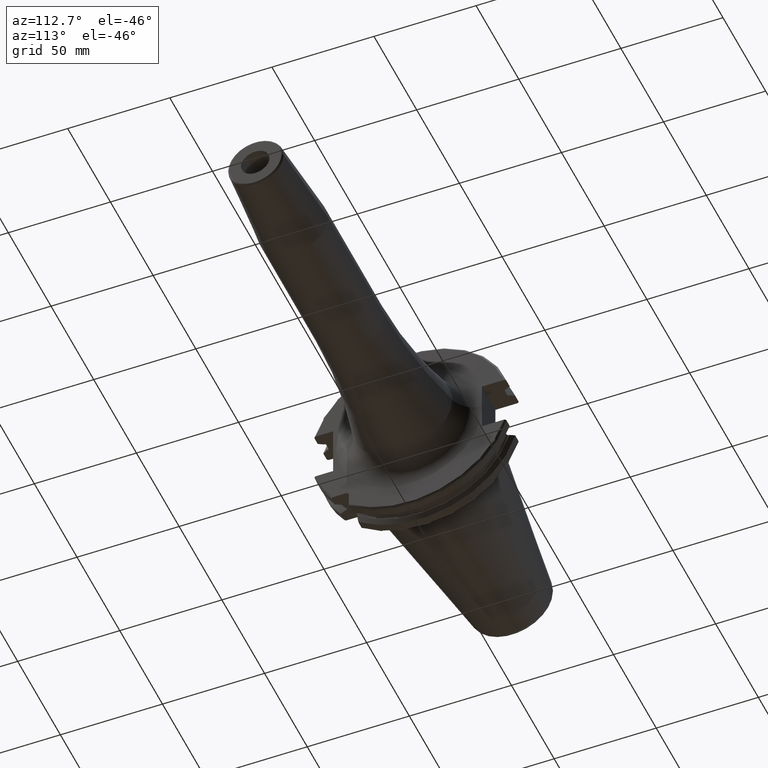
[diagram: clean part render]
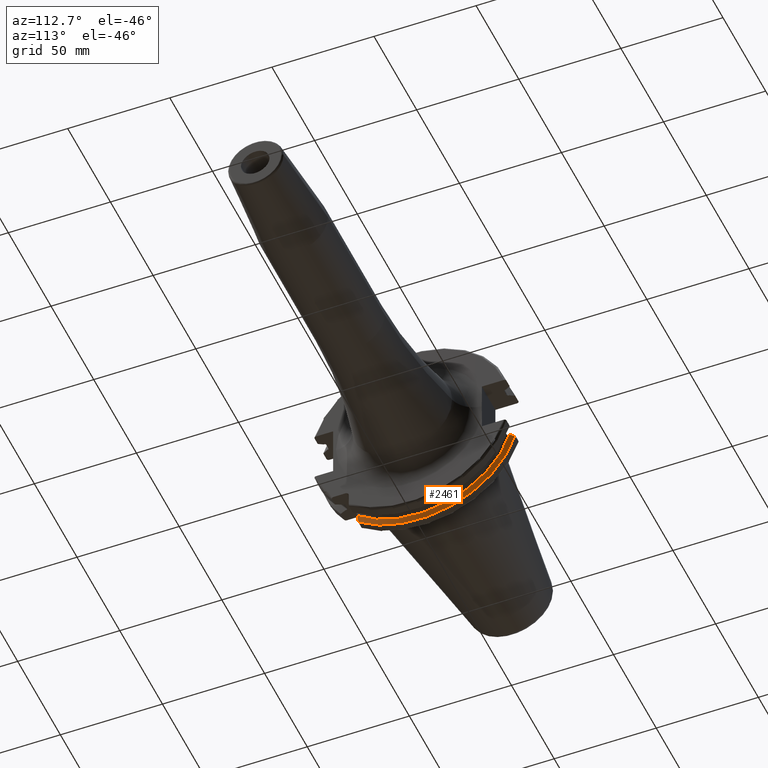
[diagram: same view with one face highlighted and labeled with its STEP entity id]
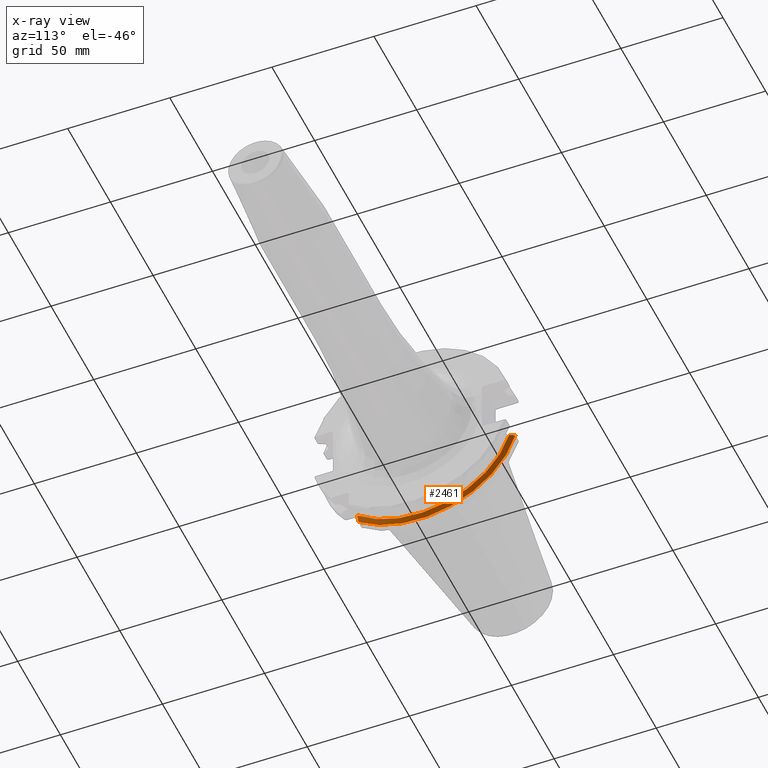
[diagram: x-ray of the same camera — body ghosted, the highlighted face saturated]
A machine part, auxiliary view. The second image highlights one B-rep face of the part: STEP entity #2461.
The next image is the same camera in x-ray: the body ghosted, the highlighted face saturated — about 0% of this face is hidden behind the body in this view.
In plain terms, the highlighted conical surface has half-angle 60 deg.
Its self-contained STEP definition (entity closure, byte-faithful):
#331=CARTESIAN_POINT('',(9.2625E0,0.E0,0.E0));
#332=DIRECTION('',(-1.E0,0.E0,0.E0));
#333=DIRECTION('',(0.E0,9.606411165078E-1,-2.777924499957E-1));
#334=AXIS2_PLACEMENT_3D('',#331,#332,#333);
#684=CARTESIAN_POINT('',(7.934621614173E0,0.E0,0.E0));
#685=DIRECTION('',(1.E0,0.E0,0.E0));
#686=DIRECTION('',(0.E0,-6.124647345473E-1,-7.904979120376E-1));
#687=AXIS2_PLACEMENT_3D('',#684,#685,#686);
#791=CARTESIAN_POINT('',(9.2625E0,4.460981716077E1,-1.29E1));
#792=CARTESIAN_POINT('',(9.118283773553E0,4.486984125009E1,-1.29E1));
#793=CARTESIAN_POINT('',(8.827633549554E0,4.539353719098E1,-1.29E1));
#794=CARTESIAN_POINT('',(8.385043355543E0,4.618996220278E1,-1.29E1));
#795=CARTESIAN_POINT('',(8.085504386120E0,4.672829507383E1,-1.29E1));
#796=CARTESIAN_POINT('',(7.934621614173E0,4.699929686974E1,-1.29E1));
#798=CARTESIAN_POINT('',(9.2625E0,-2.985E1,-3.557278857662E1));
#799=CARTESIAN_POINT('',(9.122796459387E0,-2.985E1,-3.588866659244E1));
#800=CARTESIAN_POINT('',(8.838204990616E0,-2.985E1,-3.652866450573E1));
#801=CARTESIAN_POINT('',(8.396067032347E0,-2.985E1,-3.751242476101E1));
#802=CARTESIAN_POINT('',(8.090246731407E0,-2.985E1,-3.818590359837E1));
#803=CARTESIAN_POINT('',(7.934621614173E0,-2.985E1,-3.852689198793E1));
#1320=CARTESIAN_POINT('',(9.2625E0,4.460981716077E1,-1.29E1));
#1322=VERTEX_POINT('',#1320);
#1364=VERTEX_POINT('',#796);
#1419=CARTESIAN_POINT('',(9.2625E0,-2.985E1,-3.557278857662E1));
#1420=VERTEX_POINT('',#1419);
#1463=VERTEX_POINT('',#803);
#2450=CARTESIAN_POINT('',(8.598560807087E0,0.E0,0.E0));
#2451=DIRECTION('',(-1.E0,0.E0,0.E0));
#2452=DIRECTION('',(0.E0,1.E0,0.E0));
#2453=AXIS2_PLACEMENT_3D('',#2450,#2451,#2452);
#2454=CONICAL_SURFACE('',#2453,4.758752358474E1,6.E1);
#2455=ORIENTED_EDGE('',*,*,#1940,.T.);
#2456=ORIENTED_EDGE('',*,*,#2350,.F.);
#2457=ORIENTED_EDGE('',*,*,#2304,.F.);
#2458=ORIENTED_EDGE('',*,*,#1967,.F.);
#2459=EDGE_LOOP('',(#2455,#2456,#2457,#2458));
#2460=FACE_OUTER_BOUND('',#2459,.F.);
#2461=ADVANCED_FACE('',(#2460),#2454,.T.);
#335=CIRCLE('',#334,4.643754716948E1);
#688=CIRCLE('',#687,4.87375E1);
#797=B_SPLINE_CURVE_WITH_KNOTS('',3,(#791,#792,#793,#794,#795,#796),
.UNSPECIFIED.,.F.,.F.,(4,1,1,4),(0.E0,3.333333333333E-1,6.666666666667E-1,1.E0),
.UNSPECIFIED.);
#804=B_SPLINE_CURVE_WITH_KNOTS('',3,(#798,#799,#800,#801,#802,#803),
.UNSPECIFIED.,.F.,.F.,(4,1,1,4),(0.E0,3.333333333333E-1,6.666666666667E-1,1.E0),
.UNSPECIFIED.);
#1940=EDGE_CURVE('',#1322,#1364,#797,.T.);
#1967=EDGE_CURVE('',#1322,#1420,#335,.T.);
#2304=EDGE_CURVE('',#1420,#1463,#804,.T.);
#2350=EDGE_CURVE('',#1463,#1364,#688,.T.);